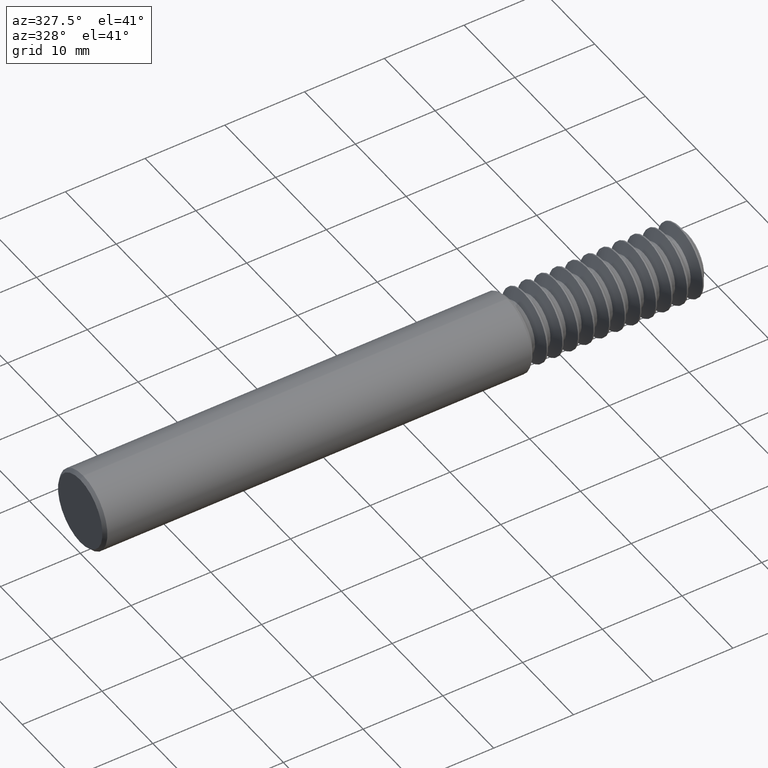
[diagram: clean part render]
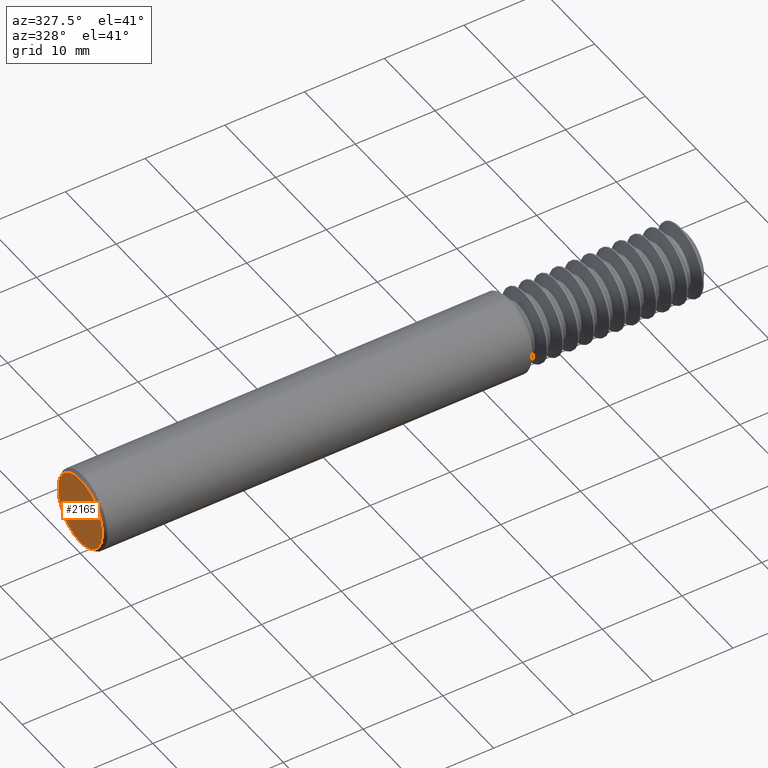
[diagram: same view with one face highlighted and labeled with its STEP entity id]
A machine part, auxiliary view. The second image highlights one B-rep face of the part: STEP entity #2165.
In plain terms, the highlighted planar face has unit normal (-1, 0, 0).
Its self-contained STEP definition (entity closure, byte-faithful):
#148 = CARTESIAN_POINT ( 'NONE',  ( 0.000000000000000000, 0.000000000000000000, 0.000000000000000000 ) ) ;
#233 = CIRCLE ( 'NONE', #950, 0.1723499999999987820 ) ;
#273 = EDGE_LOOP ( 'NONE', ( #1328, #624 ) ) ;
#314 = DIRECTION ( 'NONE',  ( -1.000000000000000000, 0.000000000000000000, 0.000000000000000000 ) ) ;
#340 = DIRECTION ( 'NONE',  ( 0.000000000000000000, 0.000000000000000000, 1.000000000000000000 ) ) ;
#360 = DIRECTION ( 'NONE',  ( -1.000000000000000000, 0.000000000000000000, 0.000000000000000000 ) ) ;
#434 = DIRECTION ( 'NONE',  ( 0.000000000000000000, 0.000000000000000000, 1.000000000000000000 ) ) ;
#457 = DIRECTION ( 'NONE',  ( 0.000000000000000000, 0.000000000000000000, 1.000000000000000000 ) ) ;
#478 = AXIS2_PLACEMENT_3D ( 'NONE', #2530, #314, #457 ) ;
#624 = ORIENTED_EDGE ( 'NONE', *, *, #1271, .T. ) ;
#626 = VERTEX_POINT ( 'NONE', #2611 ) ;
#950 = AXIS2_PLACEMENT_3D ( 'NONE', #148, #360, #340 ) ;
#1032 = CIRCLE ( 'NONE', #1160, 0.1723499999999987820 ) ;
#1160 = AXIS2_PLACEMENT_3D ( 'NONE', #1463, #1644, #434 ) ;
#1271 = EDGE_CURVE ( 'NONE', #1324, #626, #1032, .T. ) ;
#1324 = VERTEX_POINT ( 'NONE', #2088 ) ;
#1328 = ORIENTED_EDGE ( 'NONE', *, *, #1477, .T. ) ;
#1463 = CARTESIAN_POINT ( 'NONE',  ( 0.000000000000000000, 0.000000000000000000, 0.000000000000000000 ) ) ;
#1477 = EDGE_CURVE ( 'NONE', #626, #1324, #233, .T. ) ;
#1644 = DIRECTION ( 'NONE',  ( -1.000000000000000000, 0.000000000000000000, 0.000000000000000000 ) ) ;
#1709 = FACE_OUTER_BOUND ( 'NONE', #273, .T. ) ;
#2088 = CARTESIAN_POINT ( 'NONE',  ( 0.000000000000000000, 2.202527268266507031E-17, 0.1723499999999987820 ) ) ;
#2165 = ADVANCED_FACE ( 'NONE', ( #1709 ), #2303, .T. ) ;
#2303 = PLANE ( 'NONE',  #478 ) ;
#2530 = CARTESIAN_POINT ( 'NONE',  ( 0.000000000000000000, 0.000000000000000000, 0.000000000000000000 ) ) ;
#2611 = CARTESIAN_POINT ( 'NONE',  ( 0.000000000000000000, 0.000000000000000000, -0.1723499999999987820 ) ) ;